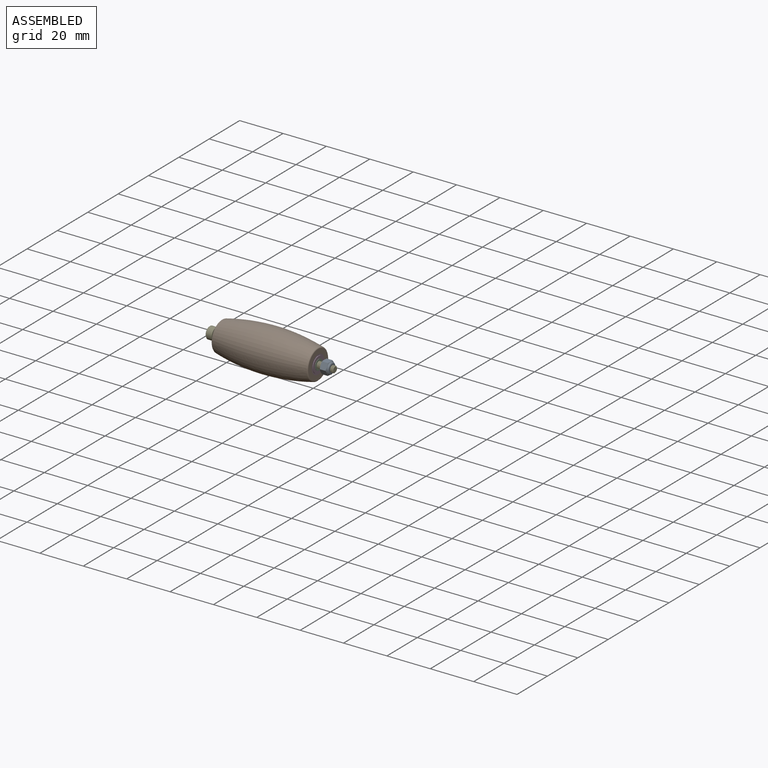
[diagram: assembled view]
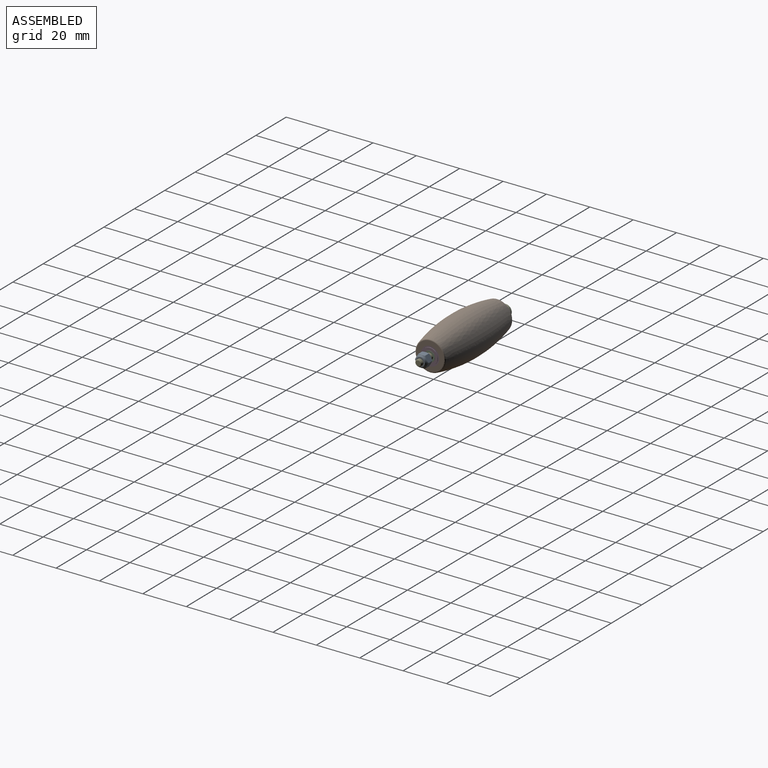
[diagram: assembled view, second angle]
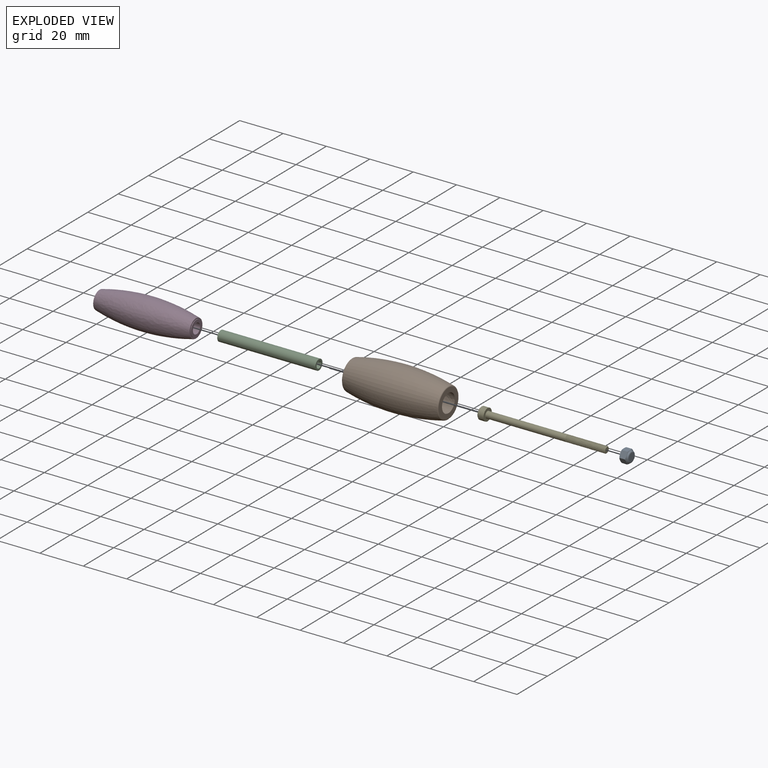
[diagram: exploded view]
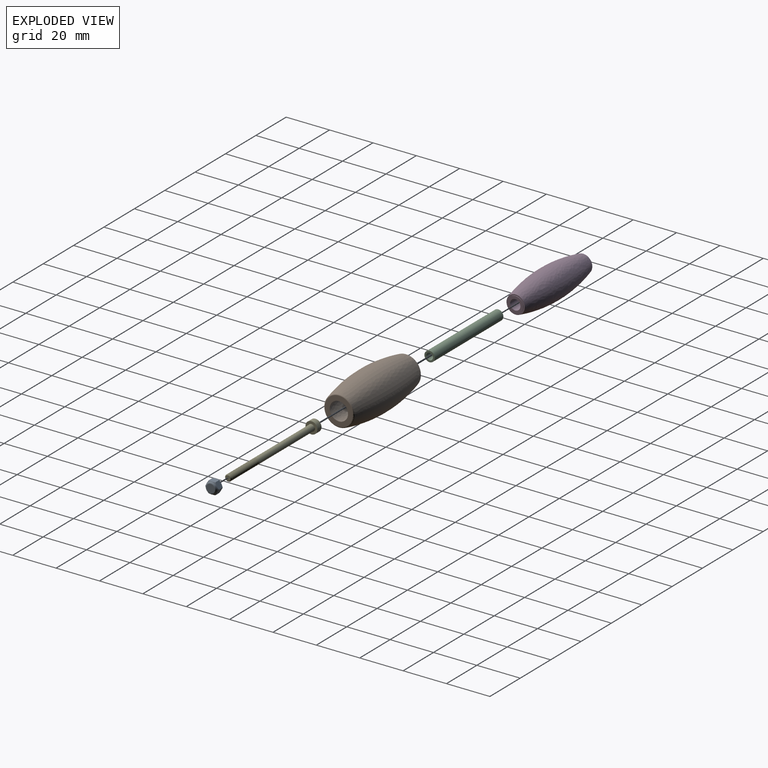
[diagram: exploded view, second angle]
ASSEMBLY  parts=5 mates=4
PART A: 11 faces, bbox 6.2x6.2x3.8 mm
  f0: cone r=3.11mm half-angle=61.8deg, axis (0,0,1), area 5.5mm2, adj f3,f4,f5,f6,f7,f8,f10
  f1: torus R=1.91mm, axis (0,0,1), area 14.5mm2, adj f2,f9
  f2: cone r=2.54mm half-angle=61.8deg, axis (0,0,-1), area 5.5mm2, adj f1,f3,f4,f5,f6,f7,f8
  f3: plane 3.01x2.69mm, normal (0.87,-0.5,0), area 8.9mm2, adj f0,f2,f4,f8
  f4: plane 3.01x2.69mm, normal (0.87,0.5,0), area 8.9mm2, adj f0,f2,f3,f5
  f5: plane 3.11x3.01mm, normal (0,1,0), area 8.9mm2, adj f0,f2,f4,f6
  f6: plane 3.01x2.69mm, normal (-0.87,0.5,0), area 8.9mm2, adj f0,f2,f5,f7
  f7: plane 3.01x2.69mm, normal (-0.87,-0.5,0), area 8.9mm2, adj f0,f2,f6,f8
  f8: plane 3.11x3.01mm, normal (0,-1,0), area 8.9mm2, adj f0,f2,f3,f7
  f9: plane 3.81x3.81mm, normal (0,0,1), area 11.4mm2, adj f1
  f10: plane 5.08x5.08mm, normal (0,0,-1), area 20.3mm2, adj f0
PART B: 8 faces, bbox 44.5x19.1x38.1 mm
  f0: bspline ~44.45x13.97mm, area 854.5mm2, adj f4,f6,f7
  f1: bspline ~43.67x19.05mm, area 1198.4mm2, adj f2,f3,f5
  f2: torus R=6.44mm, axis (1,0,0), area 28.7mm2, adj f1,f4,f5
  f3: torus R=6.44mm, axis (1,0,0), area 28.7mm2, adj f1,f5,f6
  f4: plane 12.88x12.88mm, normal (-1,0,0), area 74.2mm2, adj f0,f2,f7
  f5: bspline ~43.67x19.05mm, area 1198.4mm2, adj f1,f2,f3
  f6: plane 12.88x12.88mm, normal (1,0,0), area 74.2mm2, adj f0,f3,f7
  f7: bspline ~44.45x13.97mm, area 854.5mm2, adj f0,f4,f6
PART C: 4 faces, bbox 45.2x4.8x4.8 mm
  f0: cylinder r=1.56mm len=45.21mm, axis (-1,0,0), area 443.8mm2, adj f2,f3
  f1: cylinder r=2.38mm len=45.21mm, axis (-1,0,0), area 676.5mm2, adj f2,f3
  f2: plane 4.76x4.76mm, normal (1,0,0), area 10.1mm2, adj f0,f1
  f3: plane 4.76x4.76mm, normal (-1,0,0), area 10.1mm2, adj f0,f1
PART D: 11 faces, bbox 45x14.4x28.8 mm
  f0: bspline ~43.26x14.41mm, area 837.9mm2, adj f3,f4,f8
  f1: cylinder r=3.65mm len=7.3mm, axis (-1,0,0), area 5.8mm2, adj f6,f10
  f2: cylinder r=3.65mm len=7.3mm, axis (1,0,0), area 5.8mm2, adj f7,f9
  f3: cone r=4.23mm half-angle=13.6deg, axis (1,0,0), area 16.6mm2, adj f0,f7,f8
  f4: cone r=4.37mm half-angle=13.6deg, axis (-1,0,0), area 16.6mm2, adj f0,f6,f8
  f5: cylinder r=2.38mm len=44.96mm, axis (1,0,0), area 672.7mm2, adj f9,f10
  f6: plane 8.45x8.45mm, normal (1,0,0), area 14.2mm2, adj f1,f4
  f7: plane 8.45x8.45mm, normal (-1,0,0), area 14.2mm2, adj f2,f3
  f8: bspline ~43.26x14.41mm, area 837.9mm2, adj f0,f3,f4
  f9: plane 7.3x7.3mm, normal (-1,0,0), area 24.1mm2, adj f2,f5
  f10: plane 7.3x7.3mm, normal (1,0,0), area 24.1mm2, adj f1,f5
PART E: 129 faces, bbox 58x5.5x5.5 mm
  f0: cylinder r=1.5mm len=3mm, axis (-1,0,0), area 0.2mm2, adj f1,f3
  f1: cone r=1.22mm half-angle=45deg, axis (-1,0,0), area 3.4mm2, adj f0,f128
  f2: cone r=1.22mm half-angle=55deg, axis (-1,0,0), area 2.9mm2, adj f3,f4
  f3: cone r=1.5mm half-angle=55deg, axis (1,0,0), area 2.9mm2, adj f0,f2
  f4: cylinder r=1.5mm len=3mm, axis (-1,0,0), area 1mm2, adj f2,f6
  f5: cone r=1.22mm half-angle=55deg, axis (-1,0,0), area 2.9mm2, adj f6,f7
  f6: cone r=1.5mm half-angle=55deg, axis (1,0,0), area 2.9mm2, adj f4,f5
  f7: cylinder r=1.5mm len=3mm, axis (-1,0,0), area 1mm2, adj f5,f9
  f8: cone r=1.22mm half-angle=55deg, axis (-1,0,0), area 2.9mm2, adj f9,f10
  f9: cone r=1.5mm half-angle=55deg, axis (1,0,0), area 2.9mm2, adj f7,f8
  f10: cylinder r=1.5mm len=3mm, axis (-1,0,0), area 1mm2, adj f8,f12
  f11: cone r=1.22mm half-angle=55deg, axis (-1,0,0), area 2.9mm2, adj f12,f13
  f12: cone r=1.5mm half-angle=55deg, axis (1,0,0), area 2.9mm2, adj f10,f11
  f13: cylinder r=1.5mm len=3mm, axis (-1,0,0), area 1mm2, adj f11,f15
  f14: cone r=1.22mm half-angle=55deg, axis (-1,0,0), area 2.9mm2, adj f15,f16
  f15: cone r=1.5mm half-angle=55deg, axis (1,0,0), area 2.9mm2, adj f13,f14
  f16: cylinder r=1.5mm len=3mm, axis (-1,0,0), area 1mm2, adj f14,f18
  f17: cone r=1.22mm half-angle=55deg, axis (-1,0,0), area 2.9mm2, adj f18,f19
  f18: cone r=1.5mm half-angle=55deg, axis (1,0,0), area 2.9mm2, adj f16,f17
  f19: cylinder r=1.5mm len=3mm, axis (-1,0,0), area 1mm2, adj f17,f21
  f20: cone r=1.22mm half-angle=55deg, axis (-1,0,0), area 2.9mm2, adj f21,f22
  f21: cone r=1.5mm half-angle=55deg, axis (1,0,0), area 2.9mm2, adj f19,f20
  f22: cylinder r=1.5mm len=3mm, axis (-1,0,0), area 1mm2, adj f20,f24
  f23: cone r=1.22mm half-angle=55deg, axis (-1,0,0), area 2.9mm2, adj f24,f25
  f24: cone r=1.5mm half-angle=55deg, axis (1,0,0), area 2.9mm2, adj f22,f23
  f25: cylinder r=1.5mm len=3mm, axis (-1,0,0), area 1mm2, adj f23,f27
  f26: cone r=1.22mm half-angle=55deg, axis (-1,0,0), area 2.9mm2, adj f27,f28
  f27: cone r=1.5mm half-angle=55deg, axis (1,0,0), area 2.9mm2, adj f25,f26
  f28: cylinder r=1.5mm len=3mm, axis (-1,0,0), area 1mm2, adj f26,f30
  f29: cone r=1.22mm half-angle=55deg, axis (-1,0,0), area 2.9mm2, adj f30,f31
  f30: cone r=1.5mm half-angle=55deg, axis (1,0,0), area 2.9mm2, adj f28,f29
  f31: cylinder r=1.5mm len=3mm, axis (-1,0,0), area 1mm2, adj f29,f33
  f32: cone r=1.22mm half-angle=55deg, axis (-1,0,0), area 2.9mm2, adj f33,f34
  f33: cone r=1.5mm half-angle=55deg, axis (1,0,0), area 2.9mm2, adj f31,f32
  f34: cylinder r=1.5mm len=3mm, axis (-1,0,0), area 1mm2, adj f32,f36
  f35: cone r=1.22mm half-angle=55deg, axis (-1,0,0), area 2.9mm2, adj f36,f37
  f36: cone r=1.5mm half-angle=55deg, axis (1,0,0), area 2.9mm2, adj f34,f35
  f37: cylinder r=1.5mm len=3mm, axis (-1,0,0), area 1mm2, adj f35,f39
  f38: cone r=1.22mm half-angle=55deg, axis (-1,0,0), area 2.9mm2, adj f39,f40
  f39: cone r=1.5mm half-angle=55deg, axis (1,0,0), area 2.9mm2, adj f37,f38
  f40: cylinder r=1.5mm len=3mm, axis (-1,0,0), area 1mm2, adj f38,f42
  f41: cone r=1.22mm half-angle=55deg, axis (-1,0,0), area 2.9mm2, adj f42,f43
  f42: cone r=1.5mm half-angle=55deg, axis (1,0,0), area 2.9mm2, adj f40,f41
  f43: cylinder r=1.5mm len=3mm, axis (-1,0,0), area 1mm2, adj f41,f45
  f44: cone r=1.22mm half-angle=55deg, axis (-1,0,0), area 2.9mm2, adj f45,f46
  f45: cone r=1.5mm half-angle=55deg, axis (1,0,0), area 2.9mm2, adj f43,f44
  f46: cylinder r=1.5mm len=3mm, axis (-1,0,0), area 1mm2, adj f44,f48
  f47: cone r=1.22mm half-angle=55deg, axis (-1,0,0), area 2.9mm2, adj f48,f49
  f48: cone r=1.5mm half-angle=55deg, axis (1,0,0), area 2.9mm2, adj f46,f47
  f49: cylinder r=1.5mm len=3mm, axis (-1,0,0), area 1mm2, adj f47,f51
  f50: cone r=1.22mm half-angle=55deg, axis (-1,0,0), area 2.9mm2, adj f51,f52
  f51: cone r=1.5mm half-angle=55deg, axis (1,0,0), area 2.9mm2, adj f49,f50
  f52: cylinder r=1.5mm len=3mm, axis (-1,0,0), area 1mm2, adj f50,f54
  f53: cone r=1.22mm half-angle=55deg, axis (-1,0,0), area 2.9mm2, adj f54,f55
  f54: cone r=1.5mm half-angle=55deg, axis (1,0,0), area 2.9mm2, adj f52,f53
  f55: cylinder r=1.5mm len=3mm, axis (-1,0,0), area 1mm2, adj f53,f57
  f56: cone r=1.22mm half-angle=55deg, axis (-1,0,0), area 2.9mm2, adj f57,f58
  f57: cone r=1.5mm half-angle=55deg, axis (1,0,0), area 2.9mm2, adj f55,f56
  f58: cylinder r=1.5mm len=3mm, axis (-1,0,0), area 1mm2, adj f56,f60
  f59: cone r=1.22mm half-angle=55deg, axis (-1,0,0), area 2.9mm2, adj f60,f61
  f60: cone r=1.5mm half-angle=55deg, axis (1,0,0), area 2.9mm2, adj f58,f59
  f61: cylinder r=1.5mm len=3mm, axis (-1,0,0), area 1mm2, adj f59,f63
  f62: cone r=1.22mm half-angle=55deg, axis (-1,0,0), area 2.9mm2, adj f63,f64
  f63: cone r=1.5mm half-angle=55deg, axis (1,0,0), area 2.9mm2, adj f61,f62
  f64: cylinder r=1.5mm len=3mm, axis (-1,0,0), area 1mm2, adj f62,f66
  f65: cone r=1.22mm half-angle=55deg, axis (-1,0,0), area 2.9mm2, adj f66,f67
  f66: cone r=1.5mm half-angle=55deg, axis (1,0,0), area 2.9mm2, adj f64,f65
  f67: cylinder r=1.5mm len=3mm, axis (-1,0,0), area 1mm2, adj f65,f69
  f68: cone r=1.22mm half-angle=55deg, axis (-1,0,0), area 2.9mm2, adj f69,f70
  f69: cone r=1.5mm half-angle=55deg, axis (1,0,0), area 2.9mm2, adj f67,f68
  f70: cylinder r=1.5mm len=3mm, axis (-1,0,0), area 1mm2, adj f68,f72
  f71: cone r=1.22mm half-angle=55deg, axis (-1,0,0), area 2.9mm2, adj f72,f73
  f72: cone r=1.5mm half-angle=55deg, axis (1,0,0), area 2.9mm2, adj f70,f71
  f73: cylinder r=1.5mm len=3mm, axis (-1,0,0), area 1mm2, adj f71,f75
  f74: cone r=1.22mm half-angle=55deg, axis (-1,0,0), area 2.9mm2, adj f75,f76
  f75: cone r=1.5mm half-angle=55deg, axis (1,0,0), area 2.9mm2, adj f73,f74
  f76: cylinder r=1.5mm len=3mm, axis (-1,0,0), area 1mm2, adj f74,f78
  f77: cone r=1.22mm half-angle=55deg, axis (-1,0,0), area 2.9mm2, adj f78,f79
  f78: cone r=1.5mm half-angle=55deg, axis (1,0,0), area 2.9mm2, adj f76,f77
  f79: cylinder r=1.5mm len=3mm, axis (-1,0,0), area 1mm2, adj f77,f81
  f80: cone r=1.22mm half-angle=55deg, axis (-1,0,0), area 2.9mm2, adj f81,f82
  f81: cone r=1.5mm half-angle=55deg, axis (1,0,0), area 2.9mm2, adj f79,f80
  f82: cylinder r=1.5mm len=3mm, axis (-1,0,0), area 1mm2, adj f80,f84
  f83: cone r=1.22mm half-angle=55deg, axis (-1,0,0), area 2.9mm2, adj f84,f85
  f84: cone r=1.5mm half-angle=55deg, axis (1,0,0), area 2.9mm2, adj f82,f83
  f85: cylinder r=1.5mm len=3mm, axis (-1,0,0), area 1mm2, adj f83,f87
  f86: cone r=1.22mm half-angle=55deg, axis (-1,0,0), area 2.9mm2, adj f87,f88
  f87: cone r=1.5mm half-angle=55deg, axis (1,0,0), area 2.9mm2, adj f85,f86
  f88: cylinder r=1.5mm len=3mm, axis (-1,0,0), area 1mm2, adj f86,f90
  f89: cone r=1.22mm half-angle=55deg, axis (-1,0,0), area 2.9mm2, adj f90,f91
  f90: cone r=1.5mm half-angle=55deg, axis (1,0,0), area 2.9mm2, adj f88,f89
  f91: cylinder r=1.5mm len=3mm, axis (-1,0,0), area 1mm2, adj f89,f93
  f92: cone r=1.22mm half-angle=55deg, axis (-1,0,0), area 2.9mm2, adj f93,f94
  f93: cone r=1.5mm half-angle=55deg, axis (1,0,0), area 2.9mm2, adj f91,f92
  f94: cylinder r=1.5mm len=3mm, axis (-1,0,0), area 1mm2, adj f92,f96
  f95: cone r=1.22mm half-angle=55deg, axis (-1,0,0), area 2.9mm2, adj f96,f97
  f96: cone r=1.5mm half-angle=55deg, axis (1,0,0), area 2.9mm2, adj f94,f95
  f97: cylinder r=1.5mm len=3mm, axis (-1,0,0), area 1mm2, adj f95,f99
  f98: cone r=1.22mm half-angle=55deg, axis (-1,0,0), area 2.9mm2, adj f99,f100
  f99: cone r=1.5mm half-angle=55deg, axis (1,0,0), area 2.9mm2, adj f97,f98
  f100: cylinder r=1.5mm len=3mm, axis (-1,0,0), area 1mm2, adj f98,f102
  f101: cone r=1.22mm half-angle=55deg, axis (-1,0,0), area 2.9mm2, adj f102,f103
  f102: cone r=1.5mm half-angle=55deg, axis (1,0,0), area 2.9mm2, adj f100,f101
  f103: cylinder r=1.5mm len=3mm, axis (-1,0,0), area 1mm2, adj f101,f105
  f104: cone r=1.22mm half-angle=55deg, axis (-1,0,0), area 2.9mm2, adj f105,f106
  f105: cone r=1.5mm half-angle=55deg, axis (1,0,0), area 2.9mm2, adj f103,f104
  f106: cylinder r=1.5mm len=3mm, axis (-1,0,0), area 1mm2, adj f104,f108
  f107: cone r=1.22mm half-angle=55deg, axis (-1,0,0), area 2.9mm2, adj f108,f113
  f108: cone r=1.5mm half-angle=55deg, axis (1,0,0), area 2.9mm2, adj f106,f107
  f109: cone r=1.28mm half-angle=60deg, axis (-1,0,0), area 5.9mm2, adj f122,f123,f124,f125,f126,f127
  f110: torus R=1.6mm, axis (1,0,0), area 1.5mm2, adj f113,f115
  f111: cone r=2.45mm half-angle=45deg, axis (1,0,0), area 6.9mm2, adj f112,f114
  f112: cylinder r=2.75mm len=5.5mm, axis (-1,0,0), area 46.7mm2, adj f111,f115
  f113: cylinder r=1.5mm len=36.7mm, axis (-1,0,0), area 345.9mm2, adj f107,f110
  f114: plane 4.9x4.9mm, normal (-1,0,0), area 13.2mm2, adj f111,f116,f117,f118,f119,f120,f121
  f115: plane 5.5x5.5mm, normal (1,0,0), area 15.7mm2, adj f110,f112
  f116: plane 1.3x1.28mm, normal (0,-0.87,-0.5), area 1.9mm2, adj f114,f117,f121,f126,f127
  f117: plane 1.48x1.3mm, normal (0,0,-1), area 1.9mm2, adj f114,f116,f118,f122,f127
  f118: plane 1.3x1.28mm, normal (0,0.87,-0.5), area 1.9mm2, adj f114,f117,f119,f122,f123
  f119: plane 1.3x1.28mm, normal (0,0.87,0.5), area 1.9mm2, adj f114,f118,f120,f123,f124
  f120: plane 1.48x1.3mm, normal (0,0,1), area 1.9mm2, adj f114,f119,f121,f124,f125
  f121: plane 1.3x1.28mm, normal (0,-0.87,0.5), area 1.9mm2, adj f114,f116,f120,f125,f126
  f122: plane 1.11x0.64mm, normal (-1,0,0), area 0.1mm2, adj f109,f117,f118
  f123: plane 1.28x0.37mm, normal (-1,0,0), area 0.1mm2, adj f109,f118,f119
  f124: plane 1.11x0.64mm, normal (-1,0,0), area 0.1mm2, adj f109,f119,f120
  f125: plane 1.11x0.64mm, normal (-1,0,0), area 0.1mm2, adj f109,f120,f121
  f126: plane 1.28x0.37mm, normal (-1,0,0), area 0.1mm2, adj f109,f116,f121
  f127: plane 1.11x0.64mm, normal (-1,0,0), area 0.1mm2, adj f109,f116,f117
  f128: plane 2.44x2.44mm, normal (1,0,0), area 4.7mm2, adj f1
PLACE A rot(axis=(0.58,0.58,0.58),119.9deg) t=(24.88,0,0)mm
PLACE B rot(axis=(1,0,0),45deg) t=(0,0,0)mm
PLACE C t=(-22.61,0,0)mm
PLACE D at identity
PLACE E rot(axis=(-1,0,0),90.2deg) t=(-27.89,0,0)mm
MATE fastened A.f0 <-> E.f75  axis (-1,0,0) through (24.88,0,0)mm
MATE revolute E.f110 <-> C.f0  axis (-1,0,0) through (-24.89,0,0)mm
MATE fastened C.f0 <-> D.f5  axis (-1,0,0) through (0,0,0)mm
MATE fastened D.f1 <-> B.f2  axis (-1,0,0) through (22.23,0,0)mm
